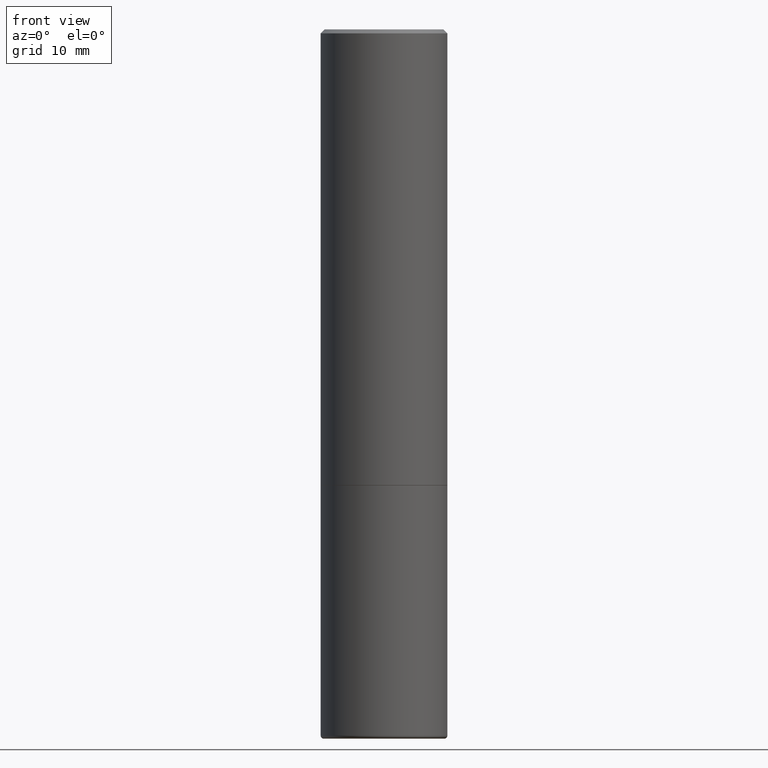
[diagram: clean part render]
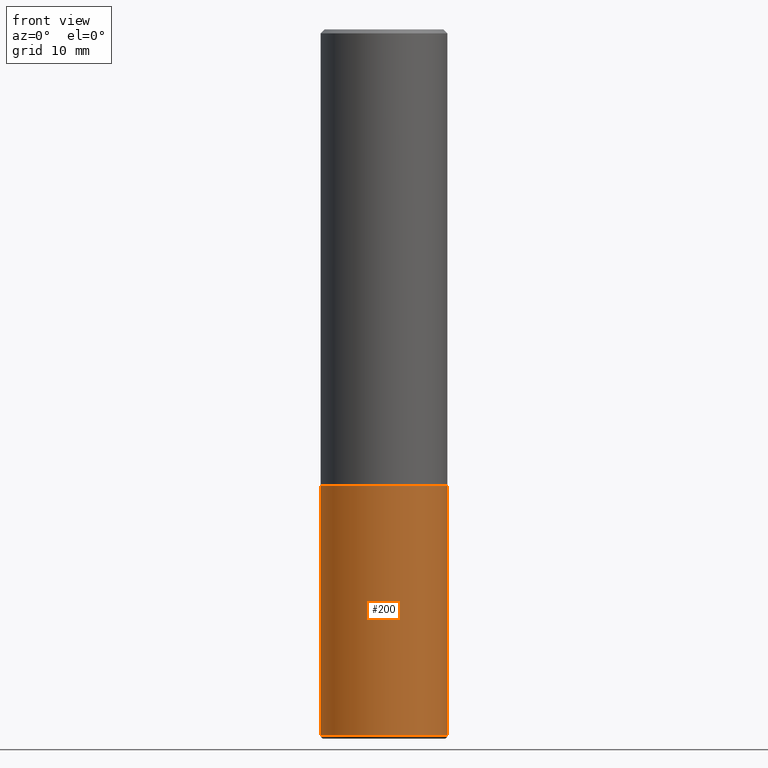
[diagram: same view with one face highlighted and labeled with its STEP entity id]
A machine part, front view. The second image highlights one B-rep face of the part: STEP entity #200.
In plain terms, the highlighted cylindrical surface (partial cylindrical patch) has radius 7.9375 mm, axis along (-0, 0, 1).
Its self-contained STEP definition (entity closure, byte-faithful):
#5 = EDGE_CURVE ( 'NONE', #153, #212, #435, .T. ) ;
#10 = VERTEX_POINT ( 'NONE', #127 ) ;
#12 = FACE_OUTER_BOUND ( 'NONE', #118, .T. ) ;
#41 = VERTEX_POINT ( 'NONE', #378 ) ;
#45 = VECTOR ( 'NONE', #313, 39.37007874015748143 ) ;
#49 = ORIENTED_EDGE ( 'NONE', *, *, #314, .T. ) ;
#51 = CARTESIAN_POINT ( 'NONE',  ( 0.000000000000000000, 0.000000000000000000, 0.000000000000000000 ) ) ;
#55 = CARTESIAN_POINT ( 'NONE',  ( -0.3125000000000002776, -7.791412577036125389E-15, -3.485020556978680073 ) ) ;
#63 = DIRECTION ( 'NONE',  ( -2.445468806185136597E-29, 3.491481338843145583E-15, 1.000000000000000000 ) ) ;
#99 = LINE ( 'NONE', #126, #367 ) ;
#114 = DIRECTION ( 'NONE',  ( 1.000000000000000000, -6.982962677686266711E-15, 4.876176775795935232E-29 ) ) ;
#118 = EDGE_LOOP ( 'NONE', ( #340, #49, #183, #293 ) ) ;
#126 = CARTESIAN_POINT ( 'NONE',  ( 0.3125000000000001665, -2.182175836776959530E-15, 1.523805242436230636E-29 ) ) ;
#127 = CARTESIAN_POINT ( 'NONE',  ( 0.3125000000000002776, -1.435006007695276788E-14, -3.485020556978680073 ) ) ;
#150 = AXIS2_PLACEMENT_3D ( 'NONE', #194, #333, #235 ) ;
#153 = VERTEX_POINT ( 'NONE', #55 ) ;
#165 = CIRCLE ( 'NONE', #186, 0.3125000000000002776 ) ;
#183 = ORIENTED_EDGE ( 'NONE', *, *, #430, .T. ) ;
#186 = AXIS2_PLACEMENT_3D ( 'NONE', #439, #63, #303 ) ;
#194 = CARTESIAN_POINT ( 'NONE',  ( 5.502304813916556222E-29, -7.855833012397075293E-15, -2.249999999999999556 ) ) ;
#195 = AXIS2_PLACEMENT_3D ( 'NONE', #51, #253, #114 ) ;
#200 = ADVANCED_FACE ( 'NONE', ( #12 ), #250, .T. ) ;
#212 = VERTEX_POINT ( 'NONE', #392 ) ;
#235 = DIRECTION ( 'NONE',  ( 1.000000000000000000, -6.982962677686265133E-15, 0.000000000000000000 ) ) ;
#250 = CYLINDRICAL_SURFACE ( 'NONE', #195, 0.3125000000000001665 ) ;
#253 = DIRECTION ( 'NONE',  ( -2.445468806185136597E-29, 3.491481338843145583E-15, 1.000000000000000000 ) ) ;
#293 = ORIENTED_EDGE ( 'NONE', *, *, #309, .F. ) ;
#303 = DIRECTION ( 'NONE',  ( 1.000000000000000000, -6.982962677686269077E-15, 0.000000000000000000 ) ) ;
#309 = EDGE_CURVE ( 'NONE', #212, #41, #441, .T. ) ;
#313 = DIRECTION ( 'NONE',  ( -2.445468806185136877E-29, 3.491481338843145188E-15, 1.000000000000000000 ) ) ;
#314 = EDGE_CURVE ( 'NONE', #153, #10, #165, .T. ) ;
#333 = DIRECTION ( 'NONE',  ( -2.445468806185136597E-29, 3.491481338843145583E-15, 1.000000000000000000 ) ) ;
#340 = ORIENTED_EDGE ( 'NONE', *, *, #5, .F. ) ;
#367 = VECTOR ( 'NONE', #399, 39.37007874015748143 ) ;
#378 = CARTESIAN_POINT ( 'NONE',  ( 0.3125000000000000000, -1.003800884917403364E-14, -2.249999999999999556 ) ) ;
#392 = CARTESIAN_POINT ( 'NONE',  ( -0.3125000000000000000, -7.791412577036126966E-15, -2.249999999999999556 ) ) ;
#399 = DIRECTION ( 'NONE',  ( -2.445468806185136877E-29, 3.491481338843145188E-15, 1.000000000000000000 ) ) ;
#412 = CARTESIAN_POINT ( 'NONE',  ( -0.3125000000000001665, 2.220446049250314264E-15, -1.537167215704658792E-29 ) ) ;
#430 = EDGE_CURVE ( 'NONE', #10, #41, #99, .T. ) ;
#435 = LINE ( 'NONE', #412, #45 ) ;
#439 = CARTESIAN_POINT ( 'NONE',  ( 8.522509061005312396E-29, -1.216788424017580638E-14, -3.485020556978680073 ) ) ;
#441 = CIRCLE ( 'NONE', #150, 0.3125000000000000000 ) ;